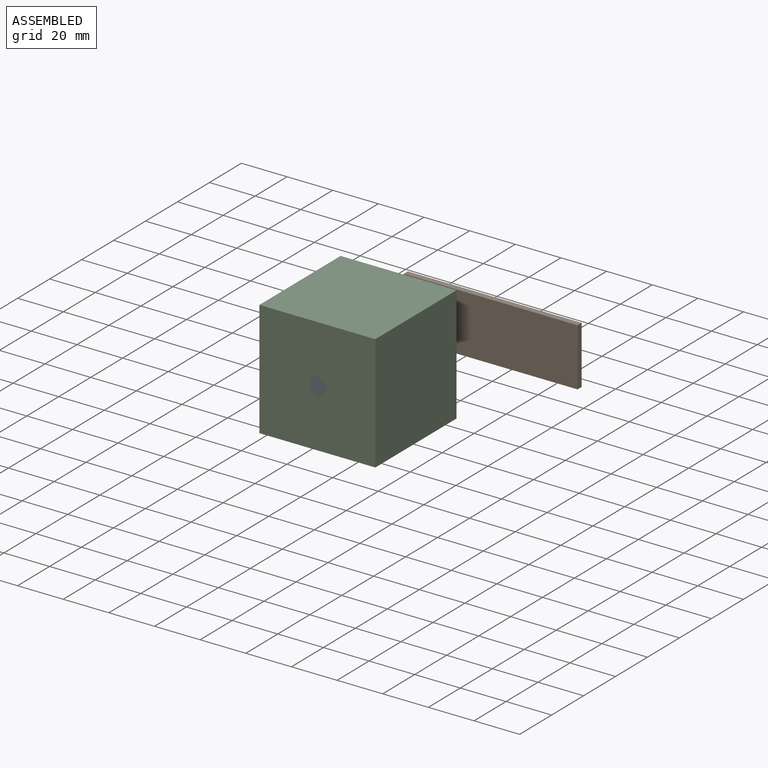
[diagram: assembled view]
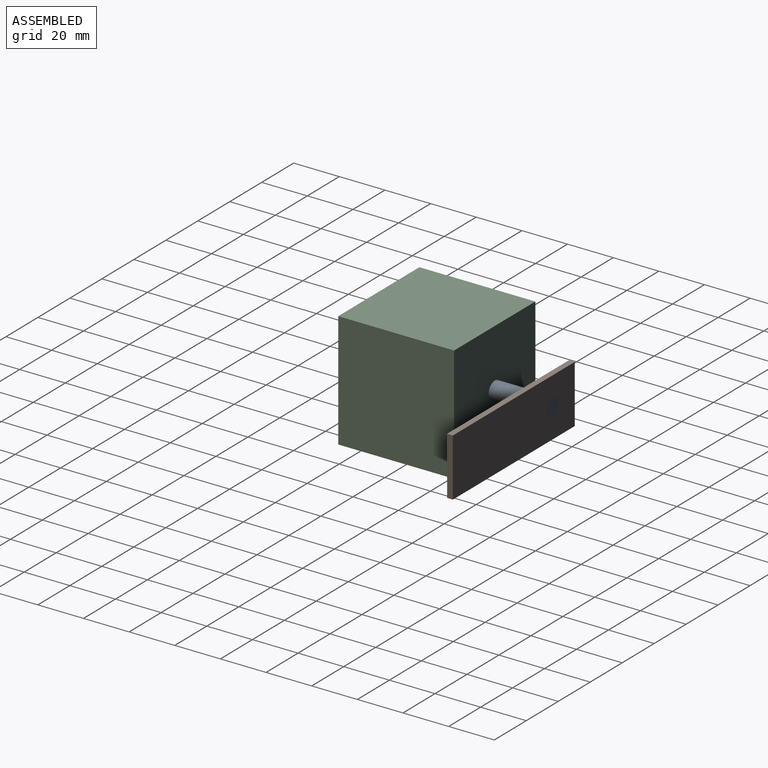
[diagram: assembled view, second angle]
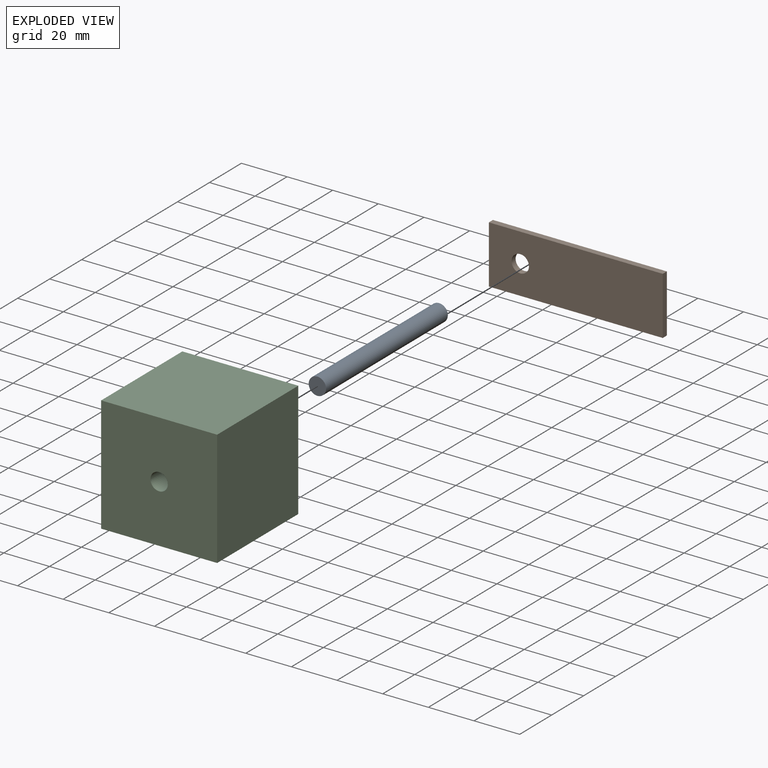
[diagram: exploded view]
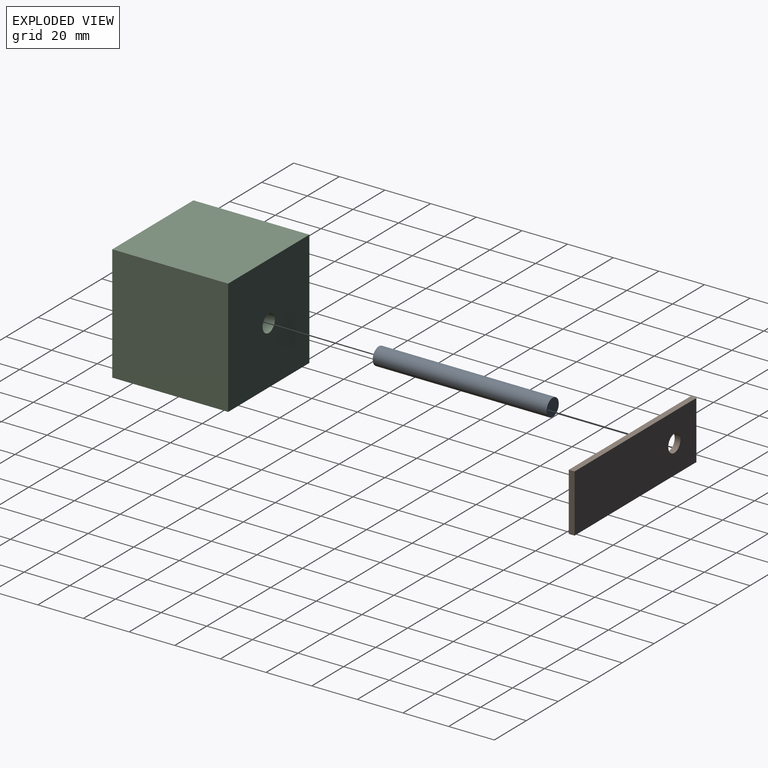
[diagram: exploded view, second angle]
ASSEMBLY  parts=3 mates=2
PART A: 3 faces, bbox 7.6x76.2x7.6 mm
  f0: cylinder r=3.81mm len=76.2mm, axis (0,1,0), area 1824.1mm2, adj f1,f2
  f1: plane 7.62x7.62mm, normal (0,-1,0), area 45.6mm2, adj f0
  f2: plane 7.62x7.62mm, normal (0,1,0), area 45.6mm2, adj f0
PART B: 7 faces, bbox 25.4x2.5x76.2 mm
  f0: plane 76.2x2.54mm, normal (1,0,0), area 193.5mm2, adj f1,f3,f5,f6
  f1: plane 25.4x2.54mm, normal (0,0,1), area 64.5mm2, adj f0,f2,f5,f6
  f2: plane 76.2x2.54mm, normal (-1,0,0), area 193.5mm2, adj f1,f3,f5,f6
  f3: plane 25.4x2.54mm, normal (0,0,-1), area 64.5mm2, adj f0,f2,f5,f6
  f4: cylinder r=3.81mm len=7.62mm, axis (0,1,0), area 60.8mm2, adj f5,f6
  f5: plane 76.2x25.4mm, normal (0,-1,0), area 1889.9mm2, adj f0,f1,f2,f3,f4
  f6: plane 76.2x25.4mm, normal (0,1,0), area 1889.9mm2, adj f0,f1,f2,f3,f4
PART C: 7 faces, bbox 50.8x50.8x50.8 mm
  f0: plane 50.8x50.8mm, normal (1,0,0), area 2580.6mm2, adj f1,f3,f5,f6
  f1: plane 50.8x50.8mm, normal (0,0,1), area 2580.6mm2, adj f0,f2,f5,f6
  f2: plane 50.8x50.8mm, normal (-1,0,0), area 2580.6mm2, adj f1,f3,f5,f6
  f3: plane 50.8x50.8mm, normal (0,0,-1), area 2580.6mm2, adj f0,f2,f5,f6
  f4: cylinder r=3.81mm len=50.8mm, axis (0,1,0), area 1216.1mm2, adj f5,f6
  f5: plane 50.8x50.8mm, normal (0,-1,0), area 2535mm2, adj f0,f1,f2,f3,f4
  f6: plane 50.8x50.8mm, normal (0,1,0), area 2535mm2, adj f0,f1,f2,f3,f4
PLACE A rot(axis=(0,1,0),90deg) t=(-55.45,-11.25,-13.32)mm
PLACE B rot(axis=(0,1,0),90deg) t=(-31.11,-11.25,-13.32)mm
PLACE C t=(-55.45,-36.65,-13.32)mm
MATE fastened A.f0 <-> B.f4  axis (0,1,0) through (-55.45,-11.25,-13.32)mm
MATE fastened A.f0 <-> C.f4  axis (0,-1,0) through (-55.45,-87.45,-13.32)mm
